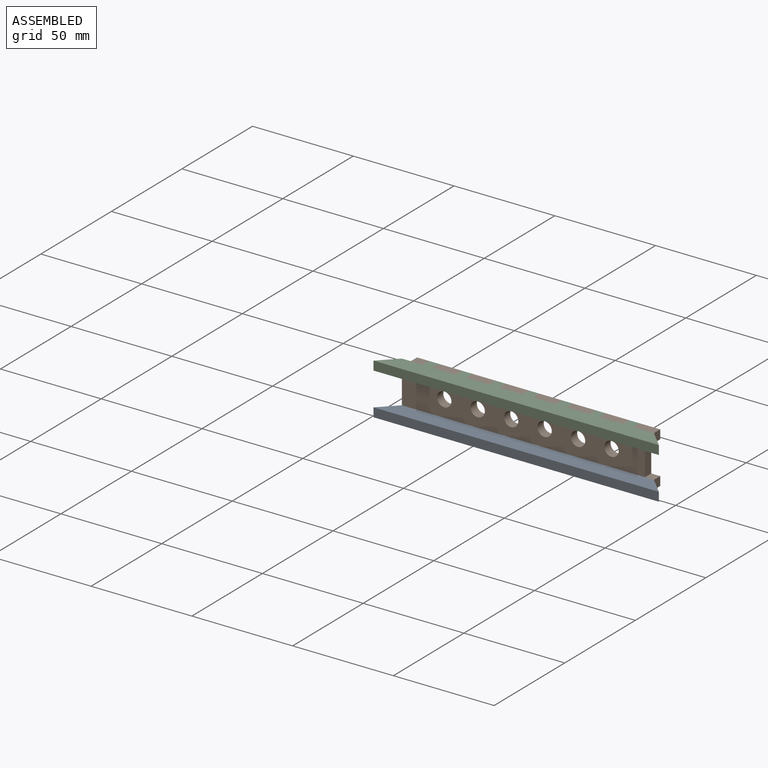
[diagram: assembled view]
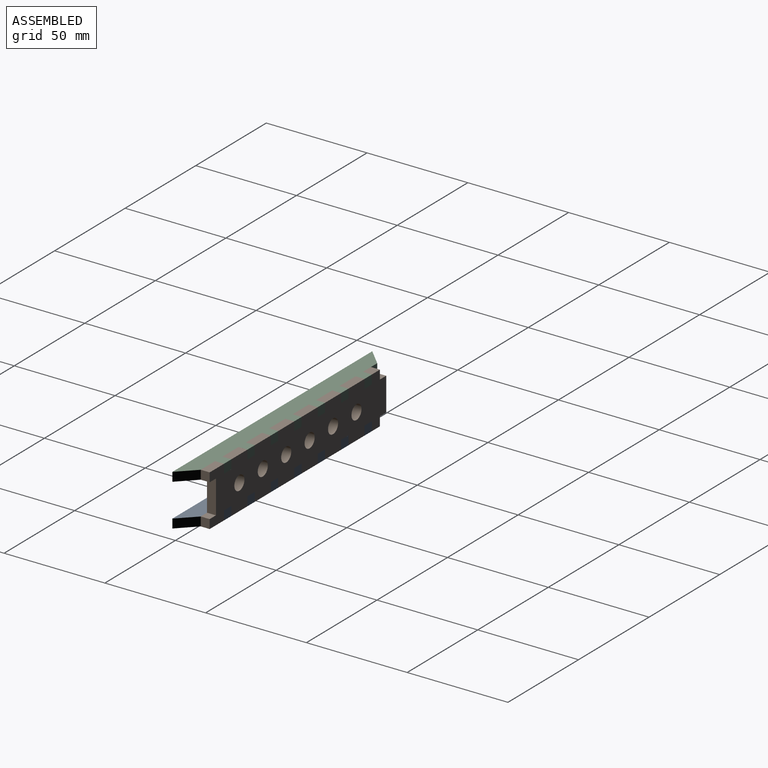
[diagram: assembled view, second angle]
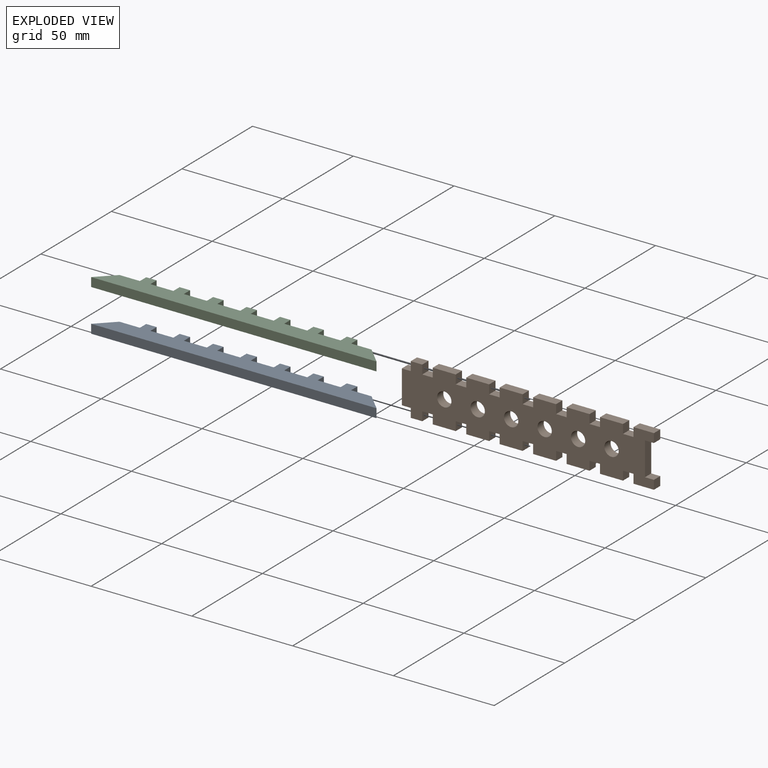
[diagram: exploded view]
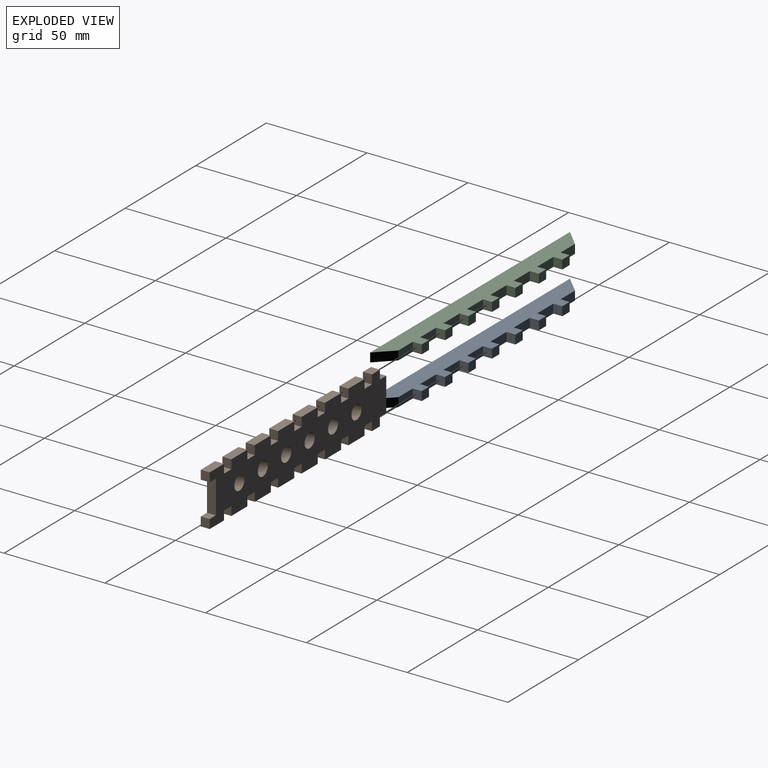
[diagram: exploded view, second angle]
ASSEMBLY  parts=3 mates=6
PART A: 34 faces, bbox 141.6x12.7x4.4 mm
  f0: plane 11.4x4.45mm, normal (0,1,0), area 50.7mm2, adj f1,f31,f32,f33
  f1: plane 4.45x4.45mm, normal (1,0,0), area 19.8mm2, adj f0,f2,f32,f33
  f2: plane 5.2x4.45mm, normal (0,1,0), area 23.1mm2, adj f1,f3,f32,f33
  f3: plane 4.45x4.45mm, normal (-1,0,0), area 19.8mm2, adj f2,f4,f32,f33
  f4: plane 10.15x4.45mm, normal (0,1,0), area 45.1mm2, adj f3,f5,f32,f33
  f5: plane 8.26x8.26mm, normal (-0.71,0.71,0), area 51.9mm2, adj f4,f6,f32,f33
  f6: plane 141.6x4.45mm, normal (0,-1,0), area 629.4mm2, adj f5,f7,f32,f33
  f7: plane 8.26x8.26mm, normal (0.71,0.71,0), area 51.9mm2, adj f6,f8,f32,f33
  f8: plane 10.15x4.45mm, normal (0,1,0), area 45.1mm2, adj f7,f9,f32,f33
  f9: plane 4.45x4.45mm, normal (1,0,0), area 19.8mm2, adj f8,f10,f32,f33
  f10: plane 5.2x4.45mm, normal (0,1,0), area 23.1mm2, adj f9,f11,f32,f33
  f11: plane 4.45x4.45mm, normal (-1,0,0), area 19.8mm2, adj f10,f12,f32,f33
  f12: plane 11.4x4.45mm, normal (0,1,0), area 50.7mm2, adj f11,f13,f32,f33
  f13: plane 4.45x4.45mm, normal (1,0,0), area 19.8mm2, adj f12,f14,f32,f33
  f14: plane 5.2x4.45mm, normal (0,1,0), area 23.1mm2, adj f13,f15,f32,f33
  f15: plane 4.45x4.45mm, normal (-1,0,0), area 19.8mm2, adj f14,f16,f32,f33
  f16: plane 11.4x4.45mm, normal (0,1,0), area 50.7mm2, adj f15,f17,f32,f33
  f17: plane 4.45x4.45mm, normal (1,0,0), area 19.8mm2, adj f16,f18,f32,f33
  f18: plane 5.2x4.45mm, normal (0,1,0), area 23.1mm2, adj f17,f19,f32,f33
  f19: plane 4.45x4.45mm, normal (-1,0,0), area 19.8mm2, adj f18,f20,f32,f33
  f20: plane 11.4x4.45mm, normal (0,1,0), area 50.7mm2, adj f19,f21,f32,f33
  f21: plane 4.45x4.45mm, normal (1,0,0), area 19.8mm2, adj f20,f22,f32,f33
  f22: plane 5.2x4.45mm, normal (0,1,0), area 23.1mm2, adj f21,f23,f32,f33
  f23: plane 4.45x4.45mm, normal (-1,0,0), area 19.8mm2, adj f22,f24,f32,f33
  f24: plane 11.4x4.45mm, normal (0,1,0), area 50.7mm2, adj f23,f25,f32,f33
  f25: plane 4.45x4.45mm, normal (1,0,0), area 19.8mm2, adj f24,f26,f32,f33
  f26: plane 5.2x4.45mm, normal (0,1,0), area 23.1mm2, adj f25,f27,f32,f33
  f27: plane 4.45x4.45mm, normal (-1,0,0), area 19.8mm2, adj f26,f28,f32,f33
  f28: plane 11.4x4.45mm, normal (0,1,0), area 50.7mm2, adj f27,f29,f32,f33
  f29: plane 4.45x4.45mm, normal (1,0,0), area 19.8mm2, adj f28,f30,f32,f33
  f30: plane 5.2x4.45mm, normal (0,1,0), area 23.1mm2, adj f29,f31,f32,f33
  f31: plane 4.45x4.45mm, normal (-1,0,0), area 19.8mm2, adj f0,f30,f32,f33
  f32: plane 141.6x12.7mm, normal (0,0,1), area 1262.6mm2, adj f0,f1,f2,f3,f4,f5,f6,f7
  f33: plane 141.6x12.7mm, normal (0,0,-1), area 1262.6mm2, adj f0,f1,f2,f3,f4,f5,f6,f7
PART B: 76 faces, bbox 125.1x25.4x4.4 mm
  f0: plane 4.45x4.45mm, normal (-1,0,0), area 19.8mm2, adj f1,f72,f74,f75
  f1: plane 5.7x4.45mm, normal (0,-1,0), area 25.3mm2, adj f0,f2,f74,f75
  f2: plane 4.45x4.45mm, normal (1,0,0), area 19.8mm2, adj f1,f3,f74,f75
  f3: plane 5.2x4.45mm, normal (0,-1,0), area 23.1mm2, adj f2,f4,f74,f75
  f4: plane 4.45x4.45mm, normal (-1,0,0), area 19.8mm2, adj f3,f5,f74,f75
  f5: plane 11.4x4.45mm, normal (0,-1,0), area 50.7mm2, adj f4,f6,f74,f75
  f6: plane 4.45x4.45mm, normal (1,0,0), area 19.8mm2, adj f5,f7,f74,f75
  f7: plane 5.2x4.45mm, normal (0,-1,0), area 23.1mm2, adj f6,f8,f74,f75
  f8: plane 4.45x4.45mm, normal (-1,0,0), area 19.8mm2, adj f7,f9,f74,f75
  f9: plane 11.4x4.45mm, normal (0,-1,0), area 50.7mm2, adj f8,f10,f74,f75
  f10: plane 4.45x4.45mm, normal (1,0,0), area 19.8mm2, adj f9,f11,f74,f75
  f11: plane 5.2x4.45mm, normal (0,-1,0), area 23.1mm2, adj f10,f12,f74,f75
  f12: plane 4.45x4.45mm, normal (-1,0,0), area 19.8mm2, adj f11,f13,f74,f75
  f13: plane 11.4x4.45mm, normal (0,-1,0), area 50.7mm2, adj f12,f14,f74,f75
  f14: plane 4.45x4.45mm, normal (1,0,0), area 19.8mm2, adj f13,f15,f74,f75
  f15: plane 5.2x4.45mm, normal (0,-1,0), area 23.1mm2, adj f14,f16,f74,f75
  f16: plane 4.45x4.45mm, normal (-1,0,0), area 19.8mm2, adj f15,f17,f74,f75
  f17: plane 11.4x4.45mm, normal (0,-1,0), area 50.7mm2, adj f16,f18,f74,f75
  f18: plane 4.45x4.45mm, normal (1,0,0), area 19.8mm2, adj f17,f19,f74,f75
  f19: plane 5.2x4.45mm, normal (0,-1,0), area 23.1mm2, adj f18,f20,f74,f75
  f20: plane 4.45x4.45mm, normal (-1,0,0), area 19.8mm2, adj f19,f21,f74,f75
  f21: plane 11.4x4.45mm, normal (0,-1,0), area 50.7mm2, adj f20,f22,f74,f75
  f22: plane 4.45x4.45mm, normal (1,0,0), area 19.8mm2, adj f21,f23,f74,f75
  f23: plane 5.2x4.45mm, normal (0,-1,0), area 23.1mm2, adj f22,f24,f74,f75
  f24: plane 4.45x4.45mm, normal (-1,0,0), area 19.8mm2, adj f23,f25,f74,f75
  f25: plane 11.4x4.45mm, normal (0,-1,0), area 50.7mm2, adj f24,f26,f74,f75
  f26: plane 4.45x4.45mm, normal (1,0,0), area 19.8mm2, adj f25,f27,f74,f75
  f27: plane 5.2x4.45mm, normal (0,-1,0), area 23.1mm2, adj f26,f28,f74,f75
  f28: plane 4.45x4.45mm, normal (-1,0,0), area 19.8mm2, adj f27,f29,f74,f75
  f29: plane 10.15x4.45mm, normal (0,-1,0), area 45.1mm2, adj f28,f30,f74,f75
  f30: plane 4.45x4.45mm, normal (1,0,0), area 19.8mm2, adj f29,f31,f74,f75
  f31: plane 4.45x4.45mm, normal (0,1,0), area 19.8mm2, adj f30,f32,f74,f75
  f32: plane 16.51x4.45mm, normal (1,0,0), area 73.4mm2, adj f31,f33,f74,f75
  f33: plane 4.45x4.45mm, normal (0,-1,0), area 19.8mm2, adj f32,f34,f74,f75
  f34: plane 4.45x4.45mm, normal (1,0,0), area 19.8mm2, adj f33,f35,f74,f75
  f35: plane 10.15x4.45mm, normal (0,1,0), area 45.1mm2, adj f34,f36,f74,f75
  f36: plane 4.45x4.45mm, normal (-1,0,0), area 19.8mm2, adj f35,f37,f74,f75
  f37: plane 5.2x4.45mm, normal (0,1,0), area 23.1mm2, adj f36,f38,f74,f75
  f38: plane 4.45x4.45mm, normal (1,0,0), area 19.8mm2, adj f37,f39,f74,f75
  f39: plane 11.4x4.45mm, normal (0,1,0), area 50.7mm2, adj f38,f40,f74,f75
  f40: plane 4.45x4.45mm, normal (-1,0,0), area 19.8mm2, adj f39,f41,f74,f75
  f41: plane 5.2x4.45mm, normal (0,1,0), area 23.1mm2, adj f40,f42,f74,f75
  f42: plane 4.45x4.45mm, normal (1,0,0), area 19.8mm2, adj f41,f43,f74,f75
  f43: plane 11.4x4.45mm, normal (0,1,0), area 50.7mm2, adj f42,f44,f74,f75
  f44: plane 4.45x4.45mm, normal (-1,0,0), area 19.8mm2, adj f43,f45,f74,f75
  f45: plane 5.2x4.45mm, normal (0,1,0), area 23.1mm2, adj f44,f46,f74,f75
  f46: plane 4.45x4.45mm, normal (1,0,0), area 19.8mm2, adj f45,f47,f74,f75
  f47: plane 11.4x4.45mm, normal (0,1,0), area 50.7mm2, adj f46,f48,f74,f75
  f48: plane 4.45x4.45mm, normal (-1,0,0), area 19.8mm2, adj f47,f49,f74,f75
  f49: plane 5.2x4.45mm, normal (0,1,0), area 23.1mm2, adj f48,f50,f74,f75
  f50: plane 4.45x4.45mm, normal (1,0,0), area 19.8mm2, adj f49,f51,f74,f75
  f51: plane 11.4x4.45mm, normal (0,1,0), area 50.7mm2, adj f50,f52,f74,f75
  f52: plane 4.45x4.45mm, normal (-1,0,0), area 19.8mm2, adj f51,f53,f74,f75
  f53: plane 5.2x4.45mm, normal (0,1,0), area 23.1mm2, adj f52,f54,f74,f75
  f54: plane 4.45x4.45mm, normal (1,0,0), area 19.8mm2, adj f53,f55,f74,f75
  f55: plane 11.4x4.45mm, normal (0,1,0), area 50.7mm2, adj f54,f56,f74,f75
  f56: plane 4.45x4.45mm, normal (-1,0,0), area 19.8mm2, adj f55,f57,f74,f75
  f57: plane 5.2x4.45mm, normal (0,1,0), area 23.1mm2, adj f56,f58,f74,f75
  f58: plane 4.45x4.45mm, normal (1,0,0), area 19.8mm2, adj f57,f59,f74,f75
  f59: plane 11.4x4.45mm, normal (0,1,0), area 50.7mm2, adj f58,f60,f74,f75
  f60: plane 4.45x4.45mm, normal (-1,0,0), area 19.8mm2, adj f59,f61,f74,f75
  f61: plane 5.2x4.45mm, normal (0,1,0), area 23.1mm2, adj f60,f62,f74,f75
  f62: plane 4.45x4.45mm, normal (1,0,0), area 19.8mm2, adj f61,f63,f74,f75
  f63: plane 5.7x4.45mm, normal (0,1,0), area 25.3mm2, adj f62,f64,f74,f75
  f64: plane 4.45x4.45mm, normal (-1,0,0), area 19.8mm2, adj f63,f65,f74,f75
  f65: plane 4.45x4.45mm, normal (0,1,0), area 19.8mm2, adj f64,f66,f74,f75
  f66: plane 16.51x4.45mm, normal (-1,0,0), area 73.4mm2, adj f65,f72,f74,f75
  f67: cylinder r=3.56mm len=7.11mm, axis (0,0,-1), area 99.3mm2, adj f74,f75
  f68: cylinder r=3.56mm len=7.11mm, axis (0,0,-1), area 99.3mm2, adj f74,f75
  f69: cylinder r=3.56mm len=7.11mm, axis (0,0,-1), area 99.3mm2, adj f74,f75
  f70: cylinder r=3.56mm len=7.11mm, axis (0,0,-1), area 99.3mm2, adj f74,f75
  f71: cylinder r=3.56mm len=7.11mm, axis (0,0,-1), area 99.3mm2, adj f74,f75
  f72: plane 4.45x4.45mm, normal (0,-1,0), area 19.8mm2, adj f0,f66,f74,f75
  f73: cylinder r=3.56mm len=7.11mm, axis (0,0,-1), area 99.3mm2, adj f74,f75
  f74: plane 125.09x25.4mm, normal (0,0,1), area 2502.4mm2, adj f0,f1,f2,f3,f4,f5,f6,f7
  f75: plane 125.09x25.4mm, normal (0,0,-1), area 2502.4mm2, adj f0,f1,f2,f3,f4,f5,f6,f7
PART C: same geometry as A
PLACE A t=(-33.78,8.86,8.43)mm
PLACE B rot(axis=(-1,0,0),90deg) t=(-33.78,3.37,33.83)mm
PLACE C t=(-33.78,8.86,29.38)mm
MATE planar B.f26 <-> C.f11  axis (1,0,0) through (71.52,5.6,31.6)mm
MATE planar B.f74 <-> C.f26  axis (0,1,0) through (23.51,7.82,21.13)mm
MATE planar B.f36 <-> A.f9  axis (-1,0,0) through (76.72,5.6,10.65)mm
MATE planar B.f53 <-> A.f32  axis (0,0,-1) through (7.72,5.6,12.87)mm
MATE planar A.f2 <-> B.f74  axis (0,1,0) through (-25.48,7.82,10.65)mm
MATE planar B.f7 <-> C.f33  axis (0,0,1) through (-8.88,5.6,29.38)mm
